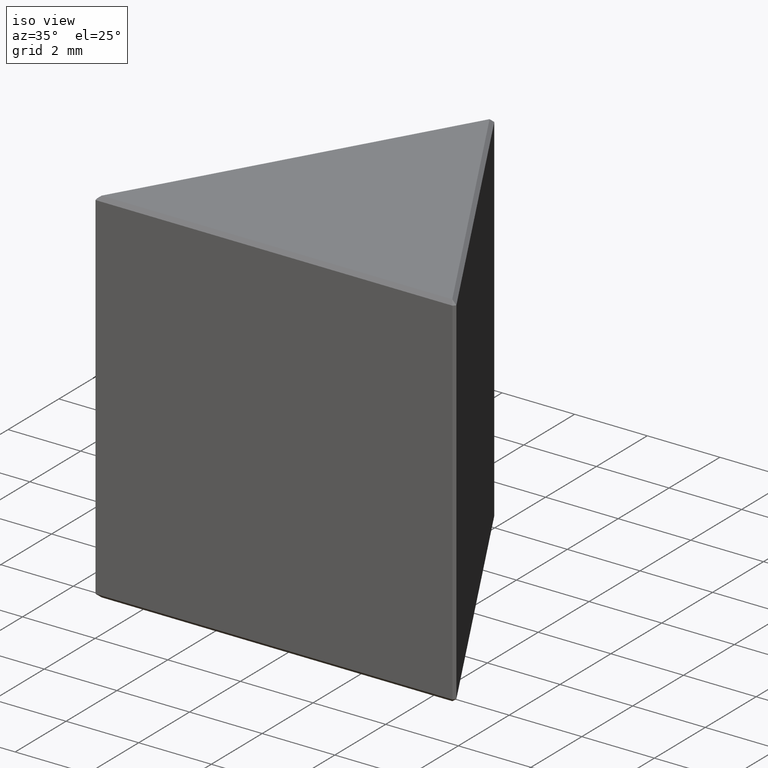
[diagram: clean part render]
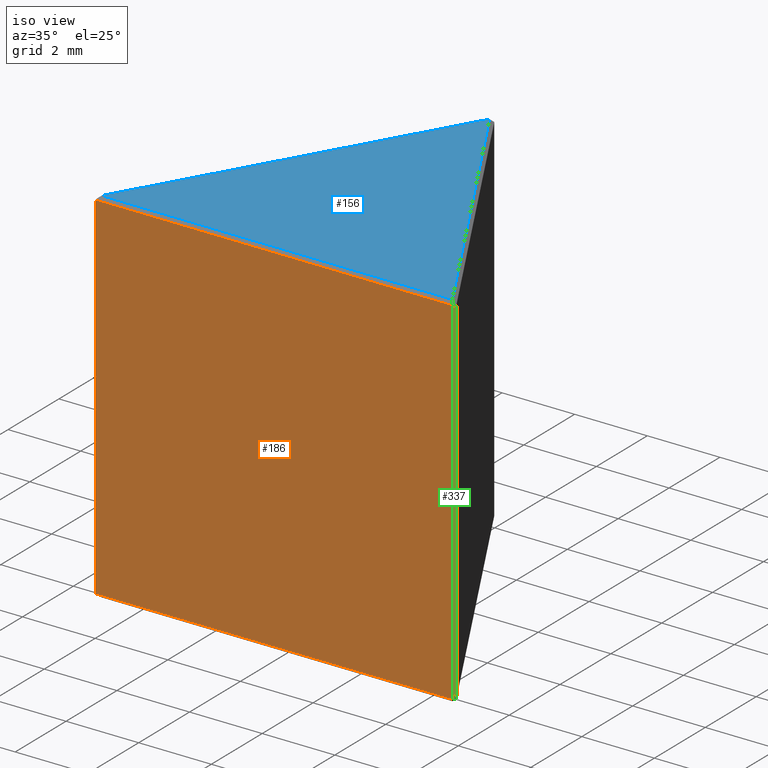
[diagram: same view with three faces highlighted in distinct colors, each labeled with its STEP entity id]
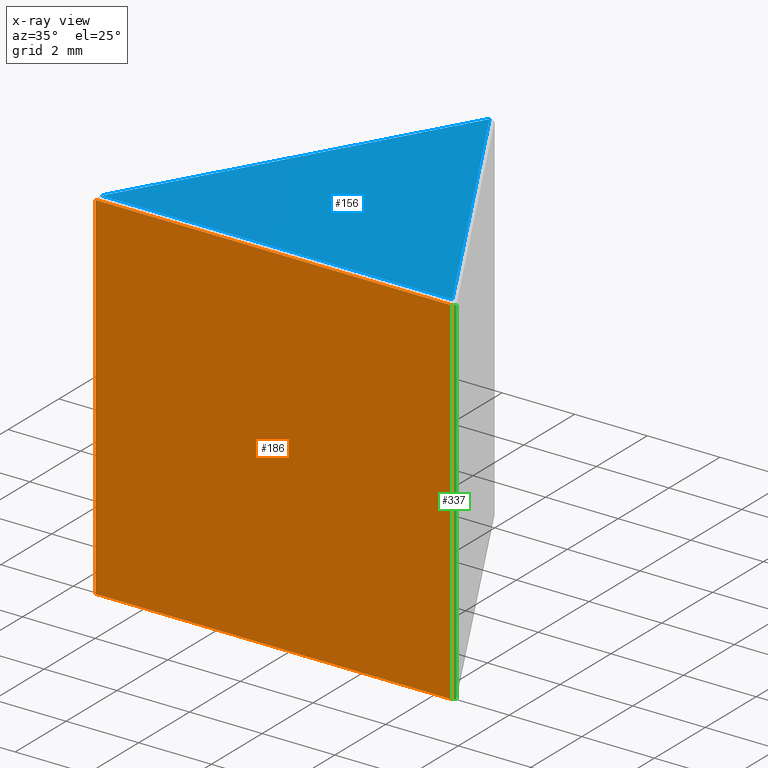
[diagram: x-ray of the same camera — body ghosted, the three highlighted faces saturated]
A machine part, iso view with three faces highlighted in distinct colors.
The next image is the same camera in x-ray (body ghosted, the three faces saturated) — at least one of them is partly hidden behind the body in this view.
Their STEP definitions:

[orange] entity #186 — the highlighted planar face has unit normal (0, 1, 0).
#17 = ORIENTED_EDGE ( 'NONE', *, *, #394, .T. ) ;
#54 = EDGE_LOOP ( 'NONE', ( #82, #78, #17, #438 ) ) ;
#55 = CARTESIAN_POINT ( 'NONE',  ( -4.926794919243112858, -8.660254037844387298, 9.899999999999998579 ) ) ;
#78 = ORIENTED_EDGE ( 'NONE', *, *, #188, .T. ) ;
#80 = VERTEX_POINT ( 'NONE', #218 ) ;
#82 = ORIENTED_EDGE ( 'NONE', *, *, #463, .T. ) ;
#100 = CARTESIAN_POINT ( 'NONE',  ( -5.000000000000000000, -8.660254037844387298, 10.00000000000000000 ) ) ;
#134 = DIRECTION ( 'NONE',  ( -1.000000000000000000, 0.000000000000000000, 0.000000000000000000 ) ) ;
#141 = VECTOR ( 'NONE', #134, 1000.000000000000000 ) ;
#175 = VECTOR ( 'NONE', #314, 1000.000000000000000 ) ;
#176 = CARTESIAN_POINT ( 'NONE',  ( -4.926794919243112858, -8.660254037844387298, 10.00000000000000000 ) ) ;
#183 = PLANE ( 'NONE',  #236 ) ;
#186 = ADVANCED_FACE ( 'NONE', ( #227 ), #183, .F. ) ;
#188 = EDGE_CURVE ( 'NONE', #80, #287, #491, .T. ) ;
#197 = LINE ( 'NONE', #446, #175 ) ;
#218 = CARTESIAN_POINT ( 'NONE',  ( 4.899999999999998579, -8.660254037844387298, 9.899999999999998579 ) ) ;
#219 = LINE ( 'NONE', #416, #245 ) ;
#227 = FACE_OUTER_BOUND ( 'NONE', #54, .T. ) ;
#236 = AXIS2_PLACEMENT_3D ( 'NONE', #100, #262, #330 ) ;
#245 = VECTOR ( 'NONE', #257, 1000.000000000000000 ) ;
#257 = DIRECTION ( 'NONE',  ( 0.000000000000000000, 0.000000000000000000, 1.000000000000000000 ) ) ;
#262 = DIRECTION ( 'NONE',  ( 0.000000000000000000, 1.000000000000000000, 0.000000000000000000 ) ) ;
#268 = EDGE_CURVE ( 'NONE', #488, #397, #197, .T. ) ;
#287 = VERTEX_POINT ( 'NONE', #55 ) ;
#295 = CARTESIAN_POINT ( 'NONE',  ( 4.899999999999998579, -8.660254037844387298, 0.09999999999999939493 ) ) ;
#314 = DIRECTION ( 'NONE',  ( 1.000000000000000000, 0.000000000000000000, 0.000000000000000000 ) ) ;
#330 = DIRECTION ( 'NONE',  ( 0.000000000000000000, -0.000000000000000000, 1.000000000000000000 ) ) ;
#363 = LINE ( 'NONE', #176, #423 ) ;
#373 = CARTESIAN_POINT ( 'NONE',  ( -5.000000000000000000, -8.660254037844387298, 9.899999999999998579 ) ) ;
#394 = EDGE_CURVE ( 'NONE', #287, #488, #363, .T. ) ;
#397 = VERTEX_POINT ( 'NONE', #295 ) ;
#416 = CARTESIAN_POINT ( 'NONE',  ( 4.899999999999998579, -8.660254037844387298, 10.00000000000000000 ) ) ;
#423 = VECTOR ( 'NONE', #452, 1000.000000000000000 ) ;
#438 = ORIENTED_EDGE ( 'NONE', *, *, #268, .T. ) ;
#446 = CARTESIAN_POINT ( 'NONE',  ( -5.000000000000000000, -8.660254037844387298, 0.09999999999999939493 ) ) ;
#452 = DIRECTION ( 'NONE',  ( 0.000000000000000000, 0.000000000000000000, -1.000000000000000000 ) ) ;
#459 = CARTESIAN_POINT ( 'NONE',  ( -4.926794919243112858, -8.660254037844387298, 0.09999999999999939493 ) ) ;
#463 = EDGE_CURVE ( 'NONE', #397, #80, #219, .T. ) ;
#488 = VERTEX_POINT ( 'NONE', #459 ) ;
#491 = LINE ( 'NONE', #373, #141 ) ;

[blue] entity #156 — the highlighted planar face has unit normal (0, 0, 1).
#4 = EDGE_CURVE ( 'NONE', #5, #501, #168, .T. ) ;
#5 = VERTEX_POINT ( 'NONE', #214 ) ;
#25 = DIRECTION ( 'NONE',  ( 1.000000000000000000, 0.000000000000000000, -0.000000000000000000 ) ) ;
#29 = FACE_OUTER_BOUND ( 'NONE', #240, .T. ) ;
#34 = DIRECTION ( 'NONE',  ( 0.000000000000000000, 0.000000000000000000, 1.000000000000000000 ) ) ;
#92 = CARTESIAN_POINT ( 'NONE',  ( -0.08660254037844333785, -0.04999999999999970440, 10.00000000000000000 ) ) ;
#106 = CARTESIAN_POINT ( 'NONE',  ( 4.826794919243114101, -8.560254037844387653, 10.00000000000000000 ) ) ;
#117 = VECTOR ( 'NONE', #126, 1000.000000000000000 ) ;
#125 = DIRECTION ( 'NONE',  ( -0.5000000000000001110, -0.8660254037844385966, 0.000000000000000000 ) ) ;
#126 = DIRECTION ( 'NONE',  ( 1.000000000000000000, 0.000000000000000000, 0.000000000000000000 ) ) ;
#132 = CARTESIAN_POINT ( 'NONE',  ( -4.913397459621557495, -8.710254037844386232, 10.00000000000000000 ) ) ;
#156 = ADVANCED_FACE ( 'NONE', ( #29 ), #367, .T. ) ;
#160 = VERTEX_POINT ( 'NONE', #106 ) ;
#168 = LINE ( 'NONE', #132, #291 ) ;
#190 = CARTESIAN_POINT ( 'NONE',  ( -4.826794919243114101, -8.560254037844387653, 10.00000000000000000 ) ) ;
#200 = LINE ( 'NONE', #246, #117 ) ;
#214 = CARTESIAN_POINT ( 'NONE',  ( -5.085960881141425601E-17, -0.1999999999999986511, 10.00000000000000000 ) ) ;
#220 = CARTESIAN_POINT ( 'NONE',  ( 0.000000000000000000, 0.000000000000000000, 10.00000000000000000 ) ) ;
#223 = LINE ( 'NONE', #92, #415 ) ;
#240 = EDGE_LOOP ( 'NONE', ( #392, #327, #281 ) ) ;
#246 = CARTESIAN_POINT ( 'NONE',  ( 5.000000000000000000, -8.560254037844387653, 10.00000000000000000 ) ) ;
#251 = DIRECTION ( 'NONE',  ( -0.5000000000000001110, 0.8660254037844385966, 0.000000000000000000 ) ) ;
#281 = ORIENTED_EDGE ( 'NONE', *, *, #433, .T. ) ;
#291 = VECTOR ( 'NONE', #125, 1000.000000000000114 ) ;
#327 = ORIENTED_EDGE ( 'NONE', *, *, #341, .T. ) ;
#341 = EDGE_CURVE ( 'NONE', #501, #160, #200, .T. ) ;
#367 = PLANE ( 'NONE',  #398 ) ;
#392 = ORIENTED_EDGE ( 'NONE', *, *, #4, .T. ) ;
#398 = AXIS2_PLACEMENT_3D ( 'NONE', #220, #34, #25 ) ;
#415 = VECTOR ( 'NONE', #251, 1000.000000000000114 ) ;
#433 = EDGE_CURVE ( 'NONE', #160, #5, #223, .T. ) ;
#501 = VERTEX_POINT ( 'NONE', #190 ) ;

[green] entity #337 — the highlighted planar face has unit normal (-0.7071, 0.7071, 0).
#7 = DIRECTION ( 'NONE',  ( 0.000000000000000000, 0.000000000000000000, -1.000000000000000000 ) ) ;
#10 = DIRECTION ( 'NONE',  ( 0.000000000000000000, 0.000000000000000000, -1.000000000000000000 ) ) ;
#13 = DIRECTION ( 'NONE',  ( -0.7071067811865523467, 0.7071067811865426878, 0.000000000000000000 ) ) ;
#23 = ORIENTED_EDGE ( 'NONE', *, *, #463, .F. ) ;
#27 = VECTOR ( 'NONE', #427, 1000.000000000000000 ) ;
#67 = LINE ( 'NONE', #266, #155 ) ;
#80 = VERTEX_POINT ( 'NONE', #218 ) ;
#103 = CARTESIAN_POINT ( 'NONE',  ( 4.899999999999998579, -8.660254037844387298, 9.899999999999998579 ) ) ;
#113 = EDGE_CURVE ( 'NONE', #430, #397, #67, .T. ) ;
#120 = FACE_OUTER_BOUND ( 'NONE', #425, .T. ) ;
#131 = CARTESIAN_POINT ( 'NONE',  ( 4.963397459621555541, -8.596856578222828560, 0.09999999999999903411 ) ) ;
#136 = LINE ( 'NONE', #103, #27 ) ;
#150 = VERTEX_POINT ( 'NONE', #458 ) ;
#155 = VECTOR ( 'NONE', #256, 1000.000000000000114 ) ;
#218 = CARTESIAN_POINT ( 'NONE',  ( 4.899999999999998579, -8.660254037844387298, 9.899999999999998579 ) ) ;
#219 = LINE ( 'NONE', #416, #245 ) ;
#224 = ORIENTED_EDGE ( 'NONE', *, *, #113, .F. ) ;
#237 = ORIENTED_EDGE ( 'NONE', *, *, #500, .F. ) ;
#245 = VECTOR ( 'NONE', #257, 1000.000000000000000 ) ;
#252 = ORIENTED_EDGE ( 'NONE', *, *, #288, .F. ) ;
#256 = DIRECTION ( 'NONE',  ( -0.7071067811865426878, -0.7071067811865522357, 4.048687686840371813E-15 ) ) ;
#257 = DIRECTION ( 'NONE',  ( 0.000000000000000000, 0.000000000000000000, 1.000000000000000000 ) ) ;
#266 = CARTESIAN_POINT ( 'NONE',  ( 4.963397459621555541, -8.596856578222828560, 0.09999999999999903411 ) ) ;
#277 = CARTESIAN_POINT ( 'NONE',  ( 4.963397459621555541, -8.596856578222828560, 10.00000000000000000 ) ) ;
#288 = EDGE_CURVE ( 'NONE', #150, #430, #437, .T. ) ;
#295 = CARTESIAN_POINT ( 'NONE',  ( 4.899999999999998579, -8.660254037844387298, 0.09999999999999939493 ) ) ;
#337 = ADVANCED_FACE ( 'NONE', ( #120 ), #475, .F. ) ;
#353 = CARTESIAN_POINT ( 'NONE',  ( 4.963397459621555541, -8.596856578222828560, 10.00000000000000000 ) ) ;
#397 = VERTEX_POINT ( 'NONE', #295 ) ;
#416 = CARTESIAN_POINT ( 'NONE',  ( 4.899999999999998579, -8.660254037844387298, 10.00000000000000000 ) ) ;
#425 = EDGE_LOOP ( 'NONE', ( #237, #23, #224, #252 ) ) ;
#427 = DIRECTION ( 'NONE',  ( 0.7071067811865426878, 0.7071067811865524577, -2.866583523299665378E-17 ) ) ;
#430 = VERTEX_POINT ( 'NONE', #131 ) ;
#437 = LINE ( 'NONE', #277, #440 ) ;
#440 = VECTOR ( 'NONE', #10, 1000.000000000000000 ) ;
#458 = CARTESIAN_POINT ( 'NONE',  ( 4.963397459621555541, -8.596856578222828560, 9.899999999999998579 ) ) ;
#463 = EDGE_CURVE ( 'NONE', #397, #80, #219, .T. ) ;
#471 = AXIS2_PLACEMENT_3D ( 'NONE', #353, #13, #7 ) ;
#475 = PLANE ( 'NONE',  #471 ) ;
#500 = EDGE_CURVE ( 'NONE', #80, #150, #136, .T. ) ;